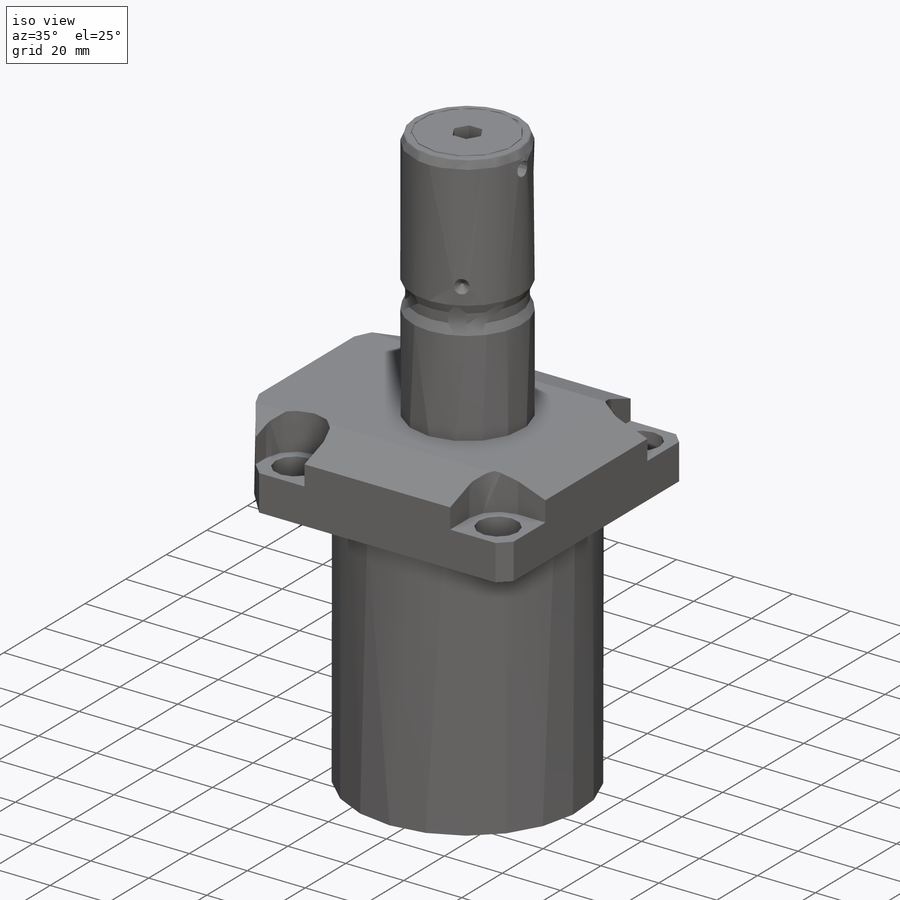
[diagram: iso view]
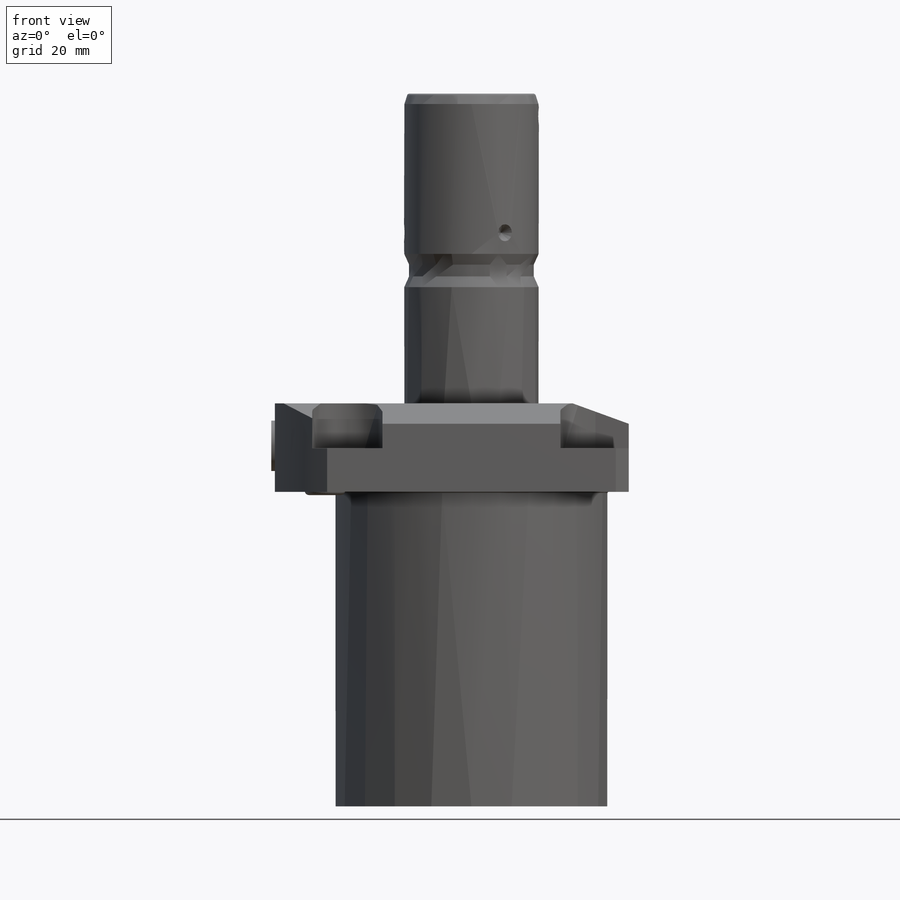
[diagram: front view]
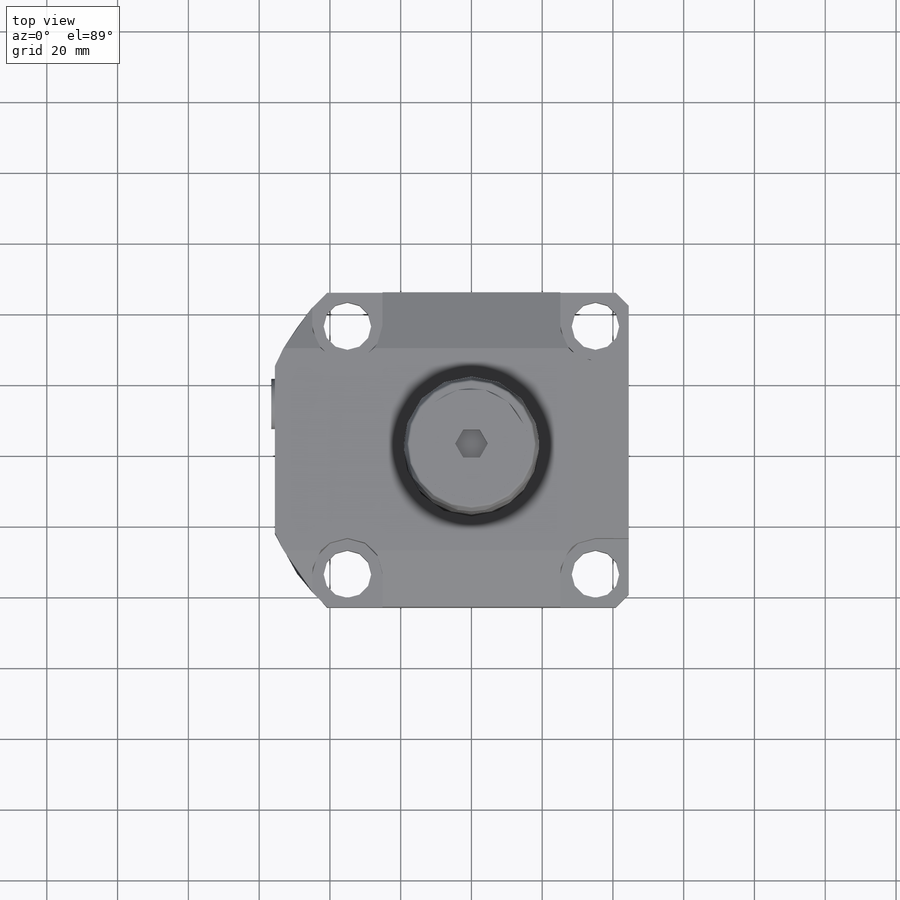
[diagram: top view]
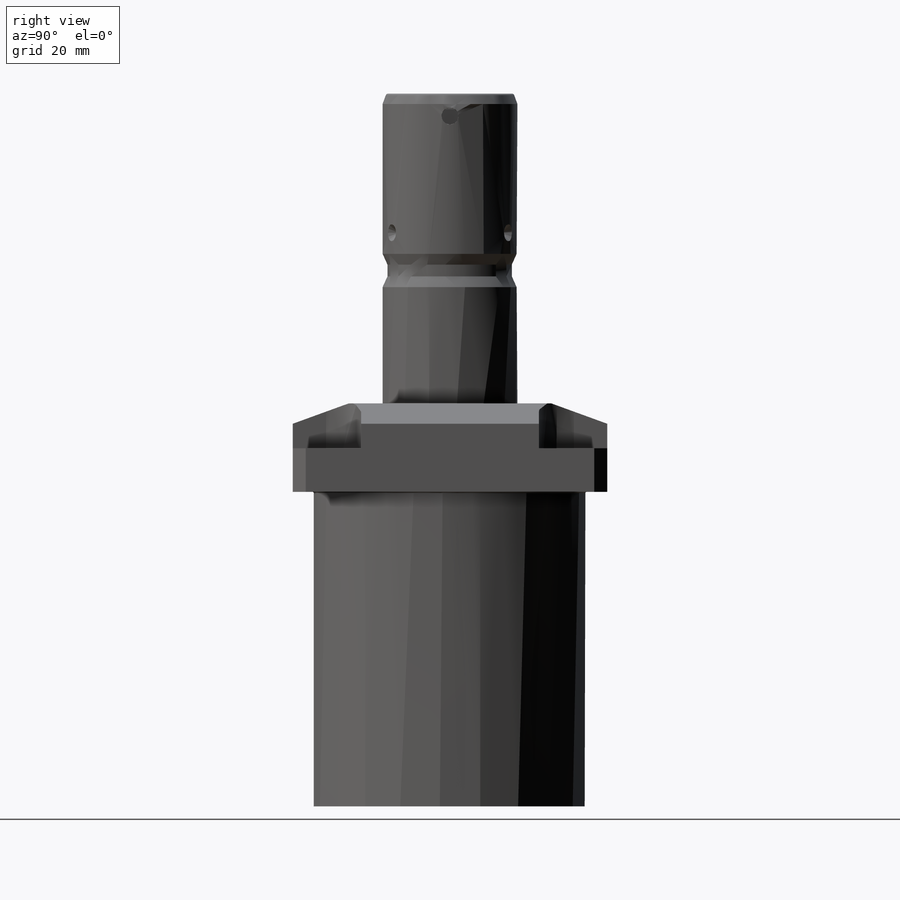
[diagram: right view]
SOLIDWORKS PART (.sldprt)
format: sldprt  version: not decoded by parser v0  size: 489,472 bytes
history: native  units: mm
features: sketch x19, plane x10, cut_extrude x6, cut_revolve x6, revolve x3, extrude x2, fillet x2, mirror x2, material x1, hole x1, chamfer x1, pattern_circular x1 (+13 scaffold rows collapsed)
feature tree (67):
  scaffold x13  (default folders/planes/origin — collapsed)
  material  "Alloy Steel"
  plane  "Plane1"
  sketch  "Sketch1"  dims[D1=55.5498mm D2=99.9998mm D3=88.9mm]
  extrude  "Extrude1"  Depth=113.919mm
  sketch  "Sketch2"  dims[D1=120.65mm]
  cut_extrude  "Cut-Extrude1"  Depth=0mm
  plane  "Plane2"
  sketch  "Sketch3"  dims[D1=76.9874mm D2=153.1874mm D3=88.9mm]
  cut_revolve  "Cut-Revolve1"  Angle=360deg
  fillet  "Fillet1"  Radius=0.381mm
  sketch  "Sketch4"  dims[D2=9.9314mm D1=35.052mm D3=35.052mm D4=35.052mm]
  cut_extrude  "Cut-Extrude2"  Depth=12.7mm
  plane  "Plane3"
  sketch  "Sketch5"  dims[c1.D1=28.575mm c1.D2=15.875mm c2.D2=20.0deg c2.D1=15.875mm]
  cut_extrude  "Cut-Extrude9"  [1 undecoded]
  mirror  "Mirror1"
  plane  "Plane7"
  sketch  "Sketch9"  dims[c1.D1=15.875mm c1.D2=15.875mm c2.D2=20.0deg]
  cut_extrude  "Cut-Extrude7"  Depth=0mm
  plane  "Plane8"
  sketch  "Sketch20"  dims[D1=18.1102mm D2=11.4046mm D3=1.4478mm D4=6.5024mm D5=1.016mm D6=2.4892mm D7=10.9728mm]
  cut_revolve  "Cut-Revolve4"  Angle=360deg
  mirror  "Mirror10"
  sketch  "Sketch10"  dims[D1=2.3622mm D2=0.2667mm D3=9.0424mm]
  revolve  "Revolve4"  Angle=360deg
  plane  "Plane9"
  sketch  "Sketch11"  dims[D1=2.3622mm D2=9.0424mm D3=0.2667mm]
  revolve  "Revolve2"  Angle=360deg
  plane  "Plane10"
  sketch  "S2D0007"  dims[D1=0.254mm D2=13.0048mm]
  cut_revolve  "Cut-Revolve2"  Angle=360deg
  plane  "Plane11"
  sketch  "Sketch13"  dims[D1=0.254mm D2=13.0048mm]
  cut_revolve  "Cut-Revolve3"  Angle=360deg
  sketch  "Sketch14"  dims[D1=14.224mm]
  extrude  "Extrude2"  Depth=1.27mm
  plane  "Plane12"
  sketch  "Sketch15"  dims[c1.D2=1.016mm c1.D4=7.9248mm c1.D6=7.9248mm c1.D1=112.5474mm c1.D3=38.1mm c1.D5=49.9872mm c2.D6=35.0012mm c2.D2=~1.436841mm c3.D2=20.0deg c3.D7=2.921mm]
  revolve  "Revolve3"  Angle=360deg
  plane  "Plane13"
  hole  "Hole1"  Diameter=13.4874mm Depth=12.319mm
  sketch  "Sketch18"
  sketch  "Sketch17"  dims[Diameter=13.4874mm Depth=12.319mm]
  chamfer  "Chamfer1"  Distance=0.635mm Angle=45deg
  fillet  "Fillet2"  Radius=0.635mm
  sketch  "Sketch21"  dims[D1=31.496mm D2=32.258mm]
  cut_extrude  "Cut-Extrude10"  Depth=0.254mm
  sketch  "Sketch22"  dims[D1=~7.999984mm]
  cut_extrude  "Cut-Extrude11"  Depth=7.9756mm
  sketch  "Sketch23"  dims[c1.D3=7.9248mm c1.D1=4.826mm c1.D2=~5.276375mm c2.D2=90.0deg c2.D3=10.668mm c2.D1=4.826mm c3.D2=~3.412497mm c4.D2=45.0deg c4.D1=4.826mm c5.D2=~3.033409mm c6.D2=45.0deg]
  cut_revolve  "Cut-Revolve5"  Angle=360deg
  pattern_circular  "CirPattern1"  Count=3 Angle=360deg
  sketch  "Sketch24"  dims[D1=3.81mm D2=4.826mm D3=6.35mm]
  cut_revolve  "Cut-Revolve6"  Angle=360deg
decode coverage: 39 of 43 modeling features carry decoded parameters
note: ~ marks probable driven/reference dimensions
note: 1 parameter value undecoded
note: suppression state not decoded; provenance and decode notes live in map.json
